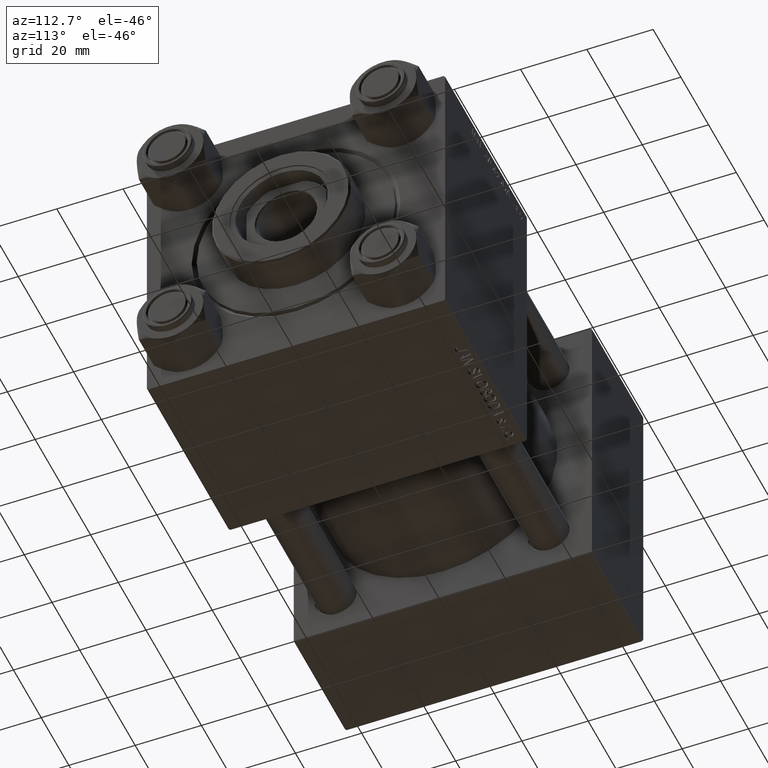
[diagram: clean part render]
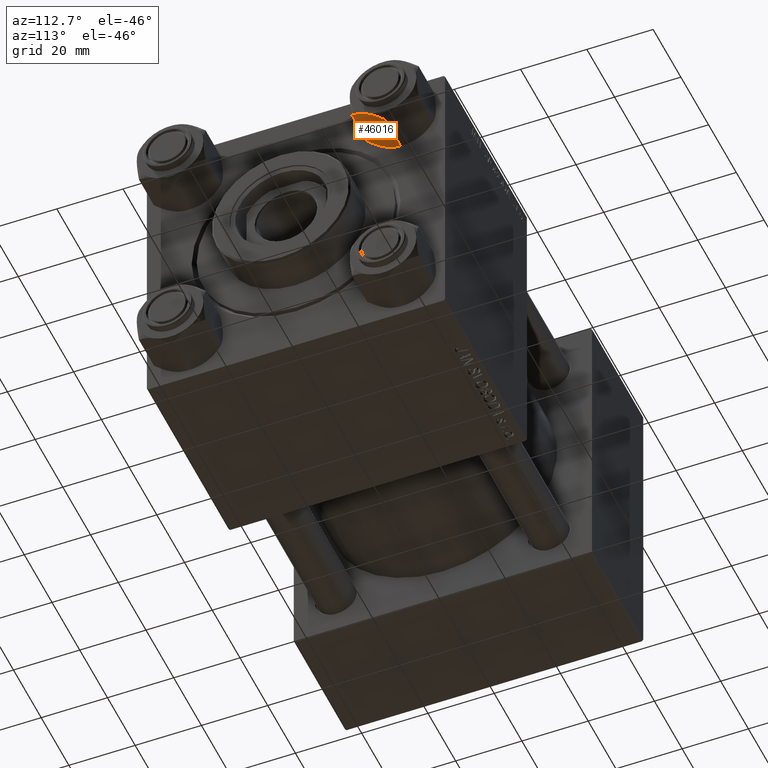
[diagram: same view with one face highlighted and labeled with its STEP entity id]
A machine part, auxiliary view. The second image highlights one B-rep face of the part: STEP entity #46016.
In plain terms, the highlighted planar face has unit normal (0, 0.5, 0.866).
Its self-contained STEP definition (entity closure, byte-faithful):
#120 = FACE_OUTER_BOUND ( 'NONE', #36322, .T. ) ;
#221 = CARTESIAN_POINT ( 'NONE',  ( -1.020132157807616125, -10.06321519197518022, -6.722053469410128280E-15 ) ) ;
#465 = CARTESIAN_POINT ( 'NONE',  ( -3.958929922320409300, -10.06321519197518377, -0.7421398502354056292 ) ) ;
#1836 = CARTESIAN_POINT ( 'NONE',  ( 1.772424303831136028, -10.06321519197517489, -0.1338870921722466467 ) ) ;
#2569 = CARTESIAN_POINT ( 'NONE',  ( 0.5112014849988978371, -10.06321519197517844, -0.009803979428920786901 ) ) ;
#3201 = CARTESIAN_POINT ( 'NONE',  ( -2.508586450168031945, -10.06321519197517667, -13.70242473679675754 ) ) ;
#3473 = AXIS2_PLACEMENT_3D ( 'NONE', #7412, #27065, #7909 ) ;
#3839 = ORIENTED_EDGE ( 'NONE', *, *, #5131, .T. ) ;
#3894 = PLANE ( 'NONE',  #3473 ) ;
#3998 = CARTESIAN_POINT ( 'NONE',  ( 6.009258394948636914E-15, -10.06321519197517134, 0.000000000000000000 ) ) ;
#4714 = B_SPLINE_CURVE_WITH_KNOTS ( 'NONE', 3,
 ( #23643, #8012, #38973, #465, #18854, #26917, #221, #3998 ),
 .UNSPECIFIED., .F., .F.,
 ( 4, 2, 2, 4 ),
 ( 0.01467889604968878985, 0.01619420351931634763, 0.01770951098894390369, 0.02074012592819901926 ),
 .UNSPECIFIED. ) ;
#5131 = EDGE_CURVE ( 'NONE', #12159, #43984, #30035, .T. ) ;
#5240 = LINE ( 'NONE', #24643, #27322 ) ;
#5510 = CARTESIAN_POINT ( 'NONE',  ( -5.809999999999990727, -10.06321519197518199, -1.556784808024822553 ) ) ;
#5946 = B_SPLINE_CURVE_WITH_KNOTS ( 'NONE', 3,
 ( #49512, #7218, #42197, #37928, #15755, #3201, #41461, #31144, #10742 ),
 .UNSPECIFIED., .F., .F.,
 ( 4, 2, 1, 2, 4 ),
 ( 0.02074012592819901579, 0.02149589804477577970, 0.02225167016135254361, 0.02376321439450607143, 0.02678630286081313053 ),
 .UNSPECIFIED. ) ;
#6640 = ORIENTED_EDGE ( 'NONE', *, *, #34613, .F. ) ;
#7218 = CARTESIAN_POINT ( 'NONE',  ( -0.2543996698847453830, -10.06321519197517667, -13.99999999999999112 ) ) ;
#7339 = CARTESIAN_POINT ( 'NONE',  ( 5.810000000000005826, -10.06321519197517489, -14.00000000000000000 ) ) ;
#7412 = CARTESIAN_POINT ( 'NONE',  ( 5.810000000000005826, -10.06321519197517489, -14.00000000000000000 ) ) ;
#7909 = DIRECTION ( 'NONE',  ( -1.000000000000000000, -5.971509383741162381E-16, 0.000000000000000000 ) ) ;
#8012 = CARTESIAN_POINT ( 'NONE',  ( -5.359707691559667531, -10.06321519197518199, -1.331638653804659178 ) ) ;
#9104 = VERTEX_POINT ( 'NONE', #25111 ) ;
#10645 = CARTESIAN_POINT ( 'NONE',  ( 5.359707691559677301, -10.06321519197517489, -12.66836134619533638 ) ) ;
#10742 = CARTESIAN_POINT ( 'NONE',  ( -5.809999999999990727, -10.06321519197518199, -12.44321519197517745 ) ) ;
#11537 = EDGE_CURVE ( 'NONE', #9104, #48424, #5946, .T. ) ;
#12159 = VERTEX_POINT ( 'NONE', #27381 ) ;
#13147 = CARTESIAN_POINT ( 'NONE',  ( 2.508586450168047932, -10.06321519197517844, -0.2975752632032387934 ) ) ;
#14175 = CARTESIAN_POINT ( 'NONE',  ( 3.958929922320426620, -10.06321519197517311, -13.25786014976459093 ) ) ;
#14201 = VECTOR ( 'NONE', #37072, 1000.000000000000000 ) ;
#14423 = CARTESIAN_POINT ( 'NONE',  ( 4.900668367960800964, -10.06321519197517667, -12.87844331629022321 ) ) ;
#15755 = CARTESIAN_POINT ( 'NONE',  ( -1.772424303831119152, -10.06321519197517667, -13.86611290782775541 ) ) ;
#16790 = VERTEX_POINT ( 'NONE', #31604 ) ;
#16931 = CARTESIAN_POINT ( 'NONE',  ( 0.2543996698847577620, -10.06321519197517844, -7.006656539687564516E-15 ) ) ;
#17681 = CARTESIAN_POINT ( 'NONE',  ( 6.009258394948636914E-15, -10.06321519197517134, 0.000000000000000000 ) ) ;
#18711 = CARTESIAN_POINT ( 'NONE',  ( 6.009258394948636914E-15, -10.06321519197517134, -14.00000000000000000 ) ) ;
#18854 = CARTESIAN_POINT ( 'NONE',  ( -3.474497094393245167, -10.06321519197518199, -0.5726960901042831287 ) ) ;
#22407 = EDGE_CURVE ( 'NONE', #43221, #16790, #4714, .T. ) ;
#23377 = ORIENTED_EDGE ( 'NONE', *, *, #32646, .F. ) ;
#23643 = CARTESIAN_POINT ( 'NONE',  ( -5.809999999999990727, -10.06321519197518199, -1.556784808024822553 ) ) ;
#24643 = CARTESIAN_POINT ( 'NONE',  ( -5.809999999999990727, -10.06321519197518199, -14.00000000000000000 ) ) ;
#25111 = CARTESIAN_POINT ( 'NONE',  ( 6.009258394948636914E-15, -10.06321519197517134, -14.00000000000000000 ) ) ;
#25739 = ORIENTED_EDGE ( 'NONE', *, *, #11537, .F. ) ;
#26917 = CARTESIAN_POINT ( 'NONE',  ( -2.013954290287957249, -10.06321519197518377, -0.1570111679760060053 ) ) ;
#27065 = DIRECTION ( 'NONE',  ( -5.971509383741162381E-16, 1.000000000000000000, 0.000000000000000000 ) ) ;
#27322 = VECTOR ( 'NONE', #39982, 1000.000000000000000 ) ;
#27381 = CARTESIAN_POINT ( 'NONE',  ( 5.810000000000006715, -10.06321519197517489, -12.44321519197517745 ) ) ;
#29295 = CARTESIAN_POINT ( 'NONE',  ( 5.810000000000005826, -10.06321519197517489, -1.556784808024824107 ) ) ;
#29580 = CARTESIAN_POINT ( 'NONE',  ( 2.013954290287970128, -10.06321519197517667, -13.84298883202399288 ) ) ;
#30035 = LINE ( 'NONE', #7339, #14201 ) ;
#30683 = ORIENTED_EDGE ( 'NONE', *, *, #22407, .F. ) ;
#31144 = CARTESIAN_POINT ( 'NONE',  ( -4.908816193182372167, -10.06321519197518022, -12.89380709538398762 ) ) ;
#31604 = CARTESIAN_POINT ( 'NONE',  ( 6.009258394948636914E-15, -10.06321519197517134, 0.000000000000000000 ) ) ;
#31910 = CARTESIAN_POINT ( 'NONE',  ( -5.809999999999990727, -10.06321519197518199, -12.44321519197517745 ) ) ;
#32314 = CARTESIAN_POINT ( 'NONE',  ( 1.018274738099093968, -10.06321519197518022, -0.04822742080071652782 ) ) ;
#32646 = EDGE_CURVE ( 'NONE', #48424, #43221, #5240, .T. ) ;
#33061 = CARTESIAN_POINT ( 'NONE',  ( 3.960942496020607884, -10.06321519197517667, -0.7115728323610508443 ) ) ;
#34613 = EDGE_CURVE ( 'NONE', #16790, #43984, #44193, .T. ) ;
#35818 = ORIENTED_EDGE ( 'NONE', *, *, #49114, .F. ) ;
#36322 = EDGE_LOOP ( 'NONE', ( #35818, #3839, #6640, #30683, #23377, #25739 ) ) ;
#36881 = B_SPLINE_CURVE_WITH_KNOTS ( 'NONE', 3,
 ( #44650, #10645, #14423, #14175, #37836, #29580, #44892, #18711 ),
 .UNSPECIFIED., .F., .F.,
 ( 4, 2, 2, 4 ),
 ( 0.01467889604968878291, 0.01619420351931634069, 0.01770951098894390022, 0.02074012592819901579 ),
 .UNSPECIFIED. ) ;
#37072 = DIRECTION ( 'NONE',  ( -0.000000000000000000, -0.000000000000000000, 1.000000000000000000 ) ) ;
#37836 = CARTESIAN_POINT ( 'NONE',  ( 3.474497094393257601, -10.06321519197517667, -13.42730390989571632 ) ) ;
#37928 = CARTESIAN_POINT ( 'NONE',  ( -1.018274738099081089, -10.06321519197517667, -13.95177257919928238 ) ) ;
#38973 = CARTESIAN_POINT ( 'NONE',  ( -4.900668367960784977, -10.06321519197518199, -1.121556683709779234 ) ) ;
#39982 = DIRECTION ( 'NONE',  ( -0.000000000000000000, -0.000000000000000000, 1.000000000000000000 ) ) ;
#41461 = CARTESIAN_POINT ( 'NONE',  ( -3.960942496020593673, -10.06321519197517844, -13.28842716763895027 ) ) ;
#41766 = CARTESIAN_POINT ( 'NONE',  ( 5.810000000000005826, -10.06321519197517489, -1.556784808024824107 ) ) ;
#42197 = CARTESIAN_POINT ( 'NONE',  ( -0.5112014849988851806, -10.06321519197517667, -13.99019602057107825 ) ) ;
#43221 = VERTEX_POINT ( 'NONE', #5510 ) ;
#43984 = VERTEX_POINT ( 'NONE', #41766 ) ;
#44193 = B_SPLINE_CURVE_WITH_KNOTS ( 'NONE', 3,
 ( #17681, #16931, #2569, #32314, #1836, #13147, #33061, #47899, #29295 ),
 .UNSPECIFIED., .F., .F.,
 ( 4, 2, 1, 2, 4 ),
 ( 0.02074012592819901926, 0.02149589804477578317, 0.02225167016135255055, 0.02376321439450607836, 0.02678630286081313747 ),
 .UNSPECIFIED. ) ;
#44650 = CARTESIAN_POINT ( 'NONE',  ( 5.810000000000006715, -10.06321519197517489, -12.44321519197517745 ) ) ;
#44892 = CARTESIAN_POINT ( 'NONE',  ( 1.020132157807628559, -10.06321519197517667, -13.99999999999999289 ) ) ;
#46016 = ADVANCED_FACE ( 'NONE', ( #120 ), #3894, .F. ) ;
#47899 = CARTESIAN_POINT ( 'NONE',  ( 4.908816193182385490, -10.06321519197517489, -1.106192904616016603 ) ) ;
#48424 = VERTEX_POINT ( 'NONE', #31910 ) ;
#49114 = EDGE_CURVE ( 'NONE', #12159, #9104, #36881, .T. ) ;
#49512 = CARTESIAN_POINT ( 'NONE',  ( 6.009258394948636914E-15, -10.06321519197517134, -14.00000000000000000 ) ) ;